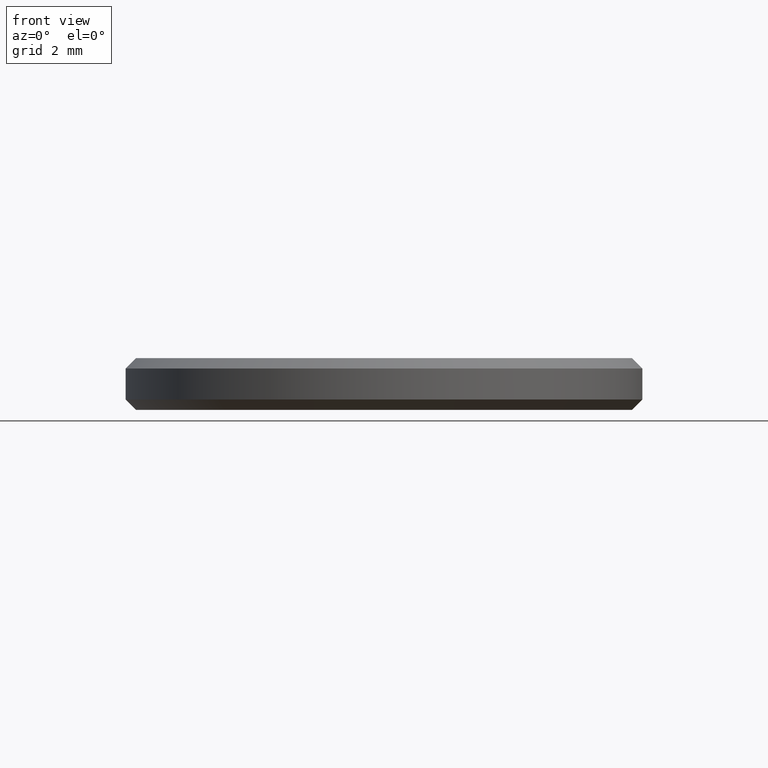
[diagram: clean part render]
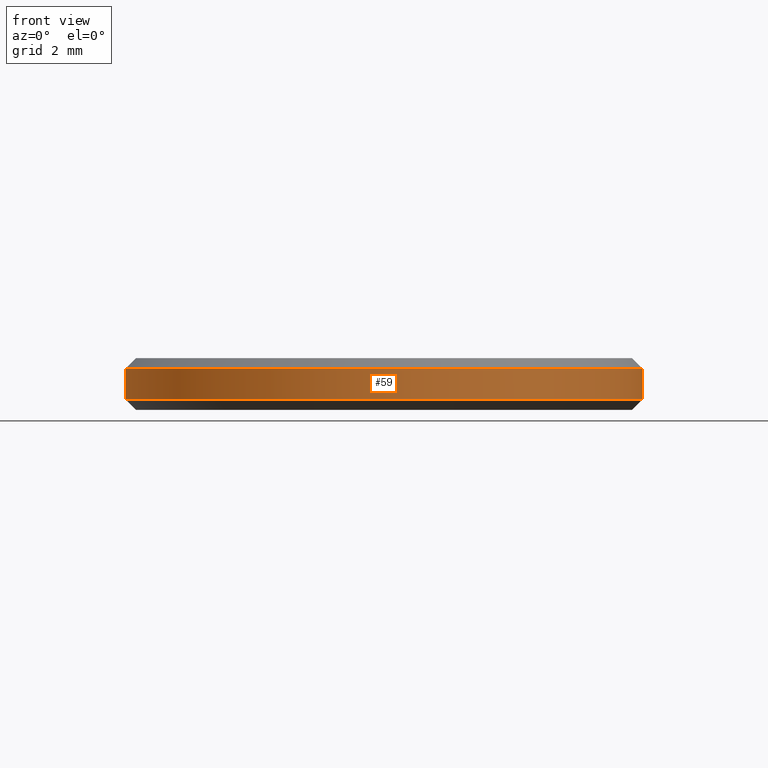
[diagram: same view with one face highlighted and labeled with its STEP entity id]
A machine part, front view. The second image highlights one B-rep face of the part: STEP entity #59.
In plain terms, the highlighted cylindrical surface (partial cylindrical patch) has radius 5 mm, axis along (-0, -0, -1).
Its self-contained STEP definition (entity closure, byte-faithful):
#6 = VERTEX_POINT ( 'NONE', #97 ) ;
#10 = FACE_OUTER_BOUND ( 'NONE', #149, .T. ) ;
#15 = AXIS2_PLACEMENT_3D ( 'NONE', #82, #180, #158 ) ;
#26 = AXIS2_PLACEMENT_3D ( 'NONE', #157, #139, #235 ) ;
#30 = DIRECTION ( 'NONE',  ( -0.000000000000000000, -0.000000000000000000, -1.000000000000000000 ) ) ;
#49 = EDGE_CURVE ( 'NONE', #194, #6, #154, .T. ) ;
#56 = ORIENTED_EDGE ( 'NONE', *, *, #49, .T. ) ;
#59 = ADVANCED_FACE ( 'NONE', ( #10 ), #86, .T. ) ;
#66 = CARTESIAN_POINT ( 'NONE',  ( 0.000000000000000000, 0.000000000000000000, 1.000000000000000000 ) ) ;
#79 = VERTEX_POINT ( 'NONE', #85 ) ;
#82 = CARTESIAN_POINT ( 'NONE',  ( 0.000000000000000000, 0.000000000000000000, 0.8000000000000012657 ) ) ;
#85 = CARTESIAN_POINT ( 'NONE',  ( 5.000000000000000000, 6.123233995736766282E-16, 0.8000000000000012657 ) ) ;
#86 = CYLINDRICAL_SURFACE ( 'NONE', #179, 5.000000000000000000 ) ;
#89 = CIRCLE ( 'NONE', #15, 5.000000000000000000 ) ;
#93 = CARTESIAN_POINT ( 'NONE',  ( -5.000000000000000000, 0.000000000000000000, 1.000000000000000000 ) ) ;
#97 = CARTESIAN_POINT ( 'NONE',  ( -5.000000000000000000, 0.000000000000000000, 0.1999999999999996503 ) ) ;
#99 = CIRCLE ( 'NONE', #26, 5.000000000000000000 ) ;
#106 = ORIENTED_EDGE ( 'NONE', *, *, #118, .T. ) ;
#114 = CARTESIAN_POINT ( 'NONE',  ( 5.000000000000000000, 6.123233995736766282E-16, 1.000000000000000000 ) ) ;
#118 = EDGE_CURVE ( 'NONE', #79, #194, #89, .T. ) ;
#123 = DIRECTION ( 'NONE',  ( -1.000000000000000000, 0.000000000000000000, 0.000000000000000000 ) ) ;
#129 = ORIENTED_EDGE ( 'NONE', *, *, #224, .F. ) ;
#134 = DIRECTION ( 'NONE',  ( -0.000000000000000000, -0.000000000000000000, -1.000000000000000000 ) ) ;
#137 = VERTEX_POINT ( 'NONE', #183 ) ;
#139 = DIRECTION ( 'NONE',  ( -0.000000000000000000, -0.000000000000000000, 1.000000000000000000 ) ) ;
#149 = EDGE_LOOP ( 'NONE', ( #129, #106, #56, #230 ) ) ;
#151 = VECTOR ( 'NONE', #220, 1000.000000000000000 ) ;
#154 = LINE ( 'NONE', #93, #156 ) ;
#156 = VECTOR ( 'NONE', #134, 1000.000000000000000 ) ;
#157 = CARTESIAN_POINT ( 'NONE',  ( 0.000000000000000000, 0.000000000000000000, 0.1999999999999996503 ) ) ;
#158 = DIRECTION ( 'NONE',  ( 1.000000000000000000, 0.000000000000000000, 0.000000000000000000 ) ) ;
#179 = AXIS2_PLACEMENT_3D ( 'NONE', #66, #30, #123 ) ;
#180 = DIRECTION ( 'NONE',  ( 0.000000000000000000, 0.000000000000000000, -1.000000000000000000 ) ) ;
#181 = EDGE_CURVE ( 'NONE', #6, #137, #99, .T. ) ;
#183 = CARTESIAN_POINT ( 'NONE',  ( 5.000000000000000000, 6.123233995736766282E-16, 0.1999999999999996503 ) ) ;
#194 = VERTEX_POINT ( 'NONE', #198 ) ;
#198 = CARTESIAN_POINT ( 'NONE',  ( -5.000000000000000000, 0.000000000000000000, 0.8000000000000012657 ) ) ;
#200 = LINE ( 'NONE', #114, #151 ) ;
#220 = DIRECTION ( 'NONE',  ( -0.000000000000000000, -0.000000000000000000, -1.000000000000000000 ) ) ;
#224 = EDGE_CURVE ( 'NONE', #79, #137, #200, .T. ) ;
#230 = ORIENTED_EDGE ( 'NONE', *, *, #181, .T. ) ;
#235 = DIRECTION ( 'NONE',  ( 1.000000000000000000, 0.000000000000000000, 0.000000000000000000 ) ) ;